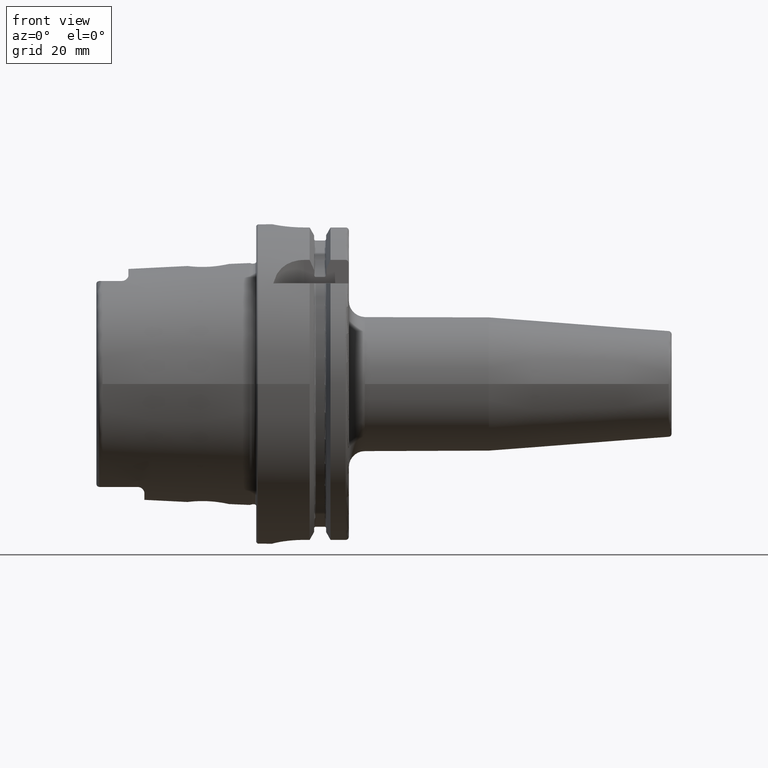
[diagram: clean part render]
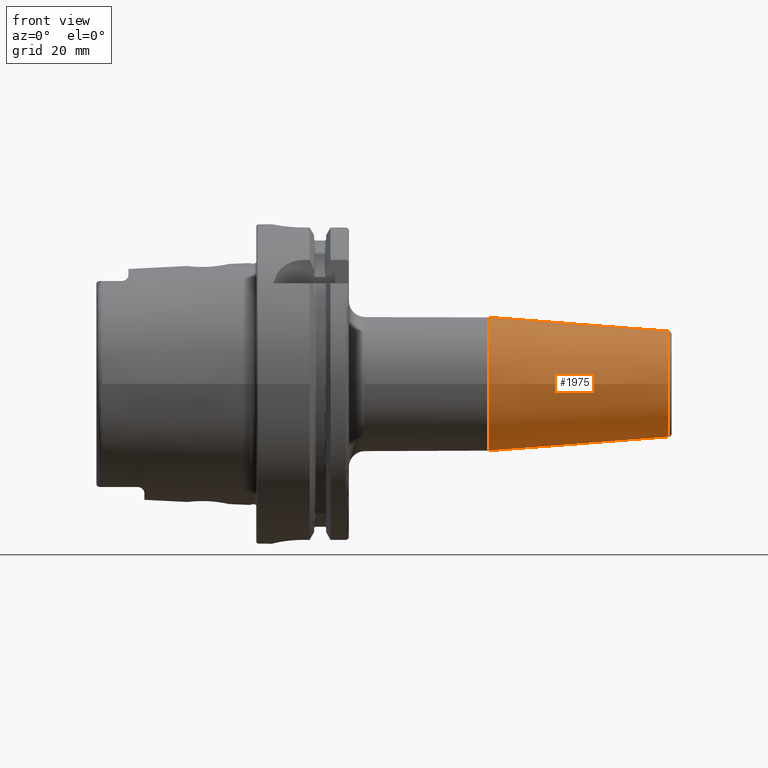
[diagram: same view with one face highlighted and labeled with its STEP entity id]
A machine part, front view. The second image highlights one B-rep face of the part: STEP entity #1975.
In plain terms, the highlighted conical surface has half-angle 4.5 deg.
Its self-contained STEP definition (entity closure, byte-faithful):
#213=FACE_OUTER_BOUND('',#332,.T.);
#332=EDGE_LOOP('',(#1342,#1343,#1344,#1345,#1346));
#463=LINE('',#3021,#570);
#570=VECTOR('',#2403,18.75);
#677=CIRCLE('',#2123,16.5725268420749);
#678=CIRCLE('',#2124,16.5725268420749);
#679=CIRCLE('',#2126,21.);
#810=VERTEX_POINT('',#3014);
#811=VERTEX_POINT('',#3016);
#812=VERTEX_POINT('',#3020);
#1018=EDGE_CURVE('',#810,#811,#677,.T.);
#1019=EDGE_CURVE('',#811,#810,#678,.T.);
#1020=EDGE_CURVE('',#811,#812,#463,.T.);
#1021=EDGE_CURVE('',#812,#812,#679,.T.);
#1342=ORIENTED_EDGE('',*,*,#1019,.F.);
#1343=ORIENTED_EDGE('',*,*,#1020,.T.);
#1344=ORIENTED_EDGE('',*,*,#1021,.T.);
#1345=ORIENTED_EDGE('',*,*,#1020,.F.);
#1346=ORIENTED_EDGE('',*,*,#1018,.F.);
#1955=CONICAL_SURFACE('',#2125,18.75,0.0785398163397448);
#1975=ADVANCED_FACE('',(#213),#1955,.T.);
#2123=AXIS2_PLACEMENT_3D('',#3017,#2397,#2398);
#2124=AXIS2_PLACEMENT_3D('',#3018,#2399,#2400);
#2125=AXIS2_PLACEMENT_3D('',#3019,#2401,#2402);
#2126=AXIS2_PLACEMENT_3D('',#3022,#2404,#2405);
#2397=DIRECTION('center_axis',(1.,0.,0.));
#2398=DIRECTION('ref_axis',(0.,-1.,3.06161699786838E-17));
#2399=DIRECTION('center_axis',(1.,0.,0.));
#2400=DIRECTION('ref_axis',(0.,-1.,3.06161699786838E-17));
#2401=DIRECTION('center_axis',(-1.,0.,0.));
#2402=DIRECTION('ref_axis',(0.,1.,0.));
#2403=DIRECTION('',(-0.996917333733128,-0.078459095727845,-9.60846804471011E-18));
#2404=DIRECTION('center_axis',(1.,0.,0.));
#2405=DIRECTION('ref_axis',(0.,0.,-1.));
#3014=CARTESIAN_POINT('',(129.078459095728,-2.02954919509306E-15,16.5725268420749));
#3016=CARTESIAN_POINT('',(129.078459095728,-16.5725268420749,-2.02954919509306E-15));
#3017=CARTESIAN_POINT('Origin',(129.078459095728,0.,-2.53693649386633E-15));
#3018=CARTESIAN_POINT('Origin',(129.078459095728,0.,-2.53693649386633E-15));
#3019=CARTESIAN_POINT('Origin',(101.411039343607,0.,0.));
#3020=CARTESIAN_POINT('',(72.8220786872138,-21.,-2.57175827820944E-15));
#3021=CARTESIAN_POINT('',(101.411039343607,-18.75,-2.29621274840129E-15));
#3022=CARTESIAN_POINT('Origin',(72.8220786872138,0.,0.));